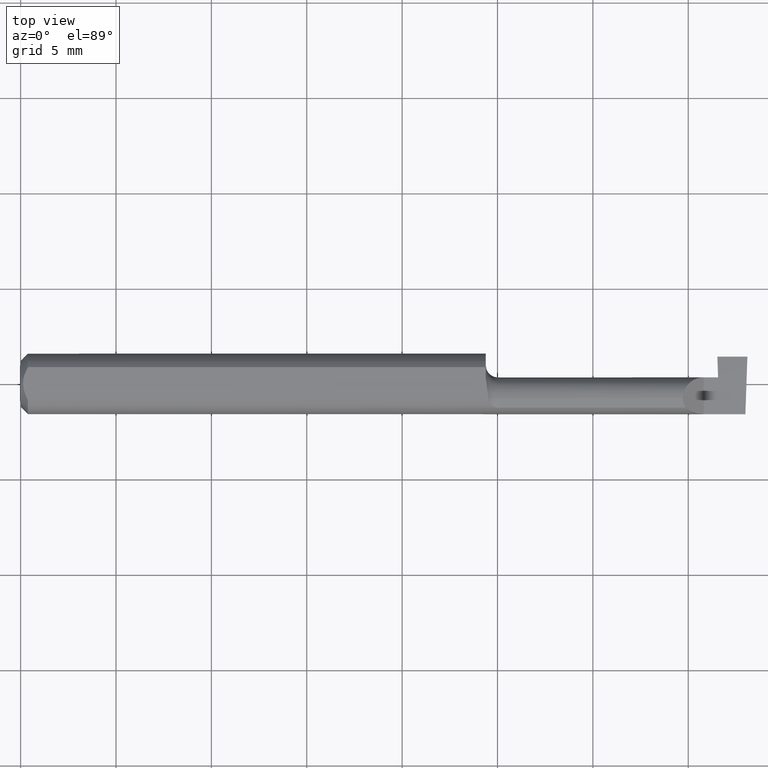
[diagram: clean part render]
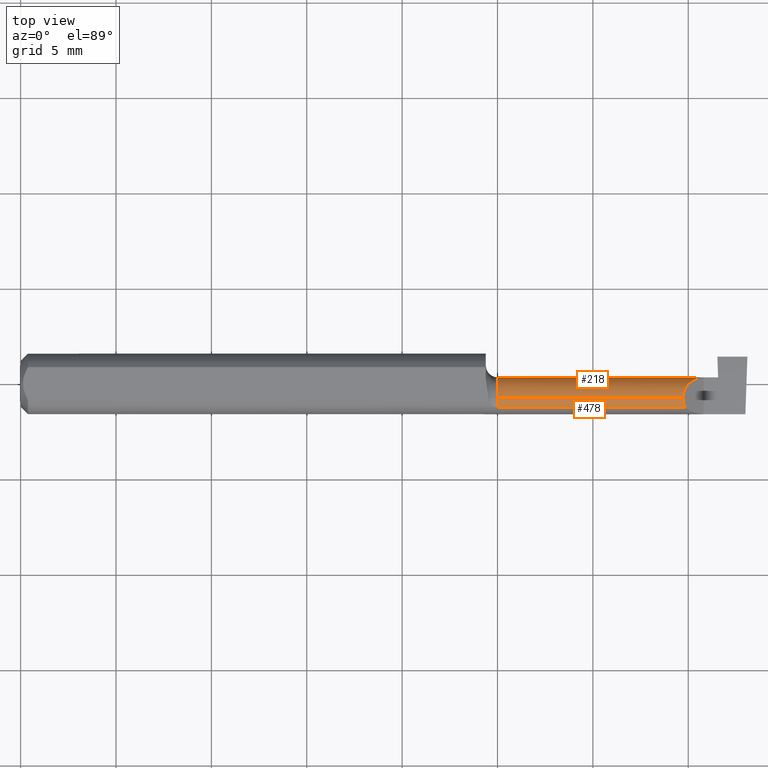
[diagram: same view with one multi-face feature highlighted, each face labeled with its STEP entity id]
A machine part, top view. The highlighted faces form ONE feature: a constant-radius fillet chain: 2 tangent blend faces with common blend radius 1.0922 mm. The faces share edges in the B-rep.
Their STEP definitions:
[1] entity #218 (Cylinder):
#8 = EDGE_LOOP ( 'NONE', ( #175, #228, #355, #48, #468, #635 ) ) ;
#20 = CARTESIAN_POINT ( 'NONE',  ( 0.9850000000000000977, -0.02949999999999999498, -0.04300000000000000350 ) ) ;
#27 = LINE ( 'NONE', #97, #556 ) ;
#48 = ORIENTED_EDGE ( 'NONE', *, *, #588, .F. ) ;
#54 = CYLINDRICAL_SURFACE ( 'NONE', #619, 0.04300000000000000350 ) ;
#74 = CARTESIAN_POINT ( 'NONE',  ( 1.367000000000000215, -0.02950000000000000192, 0.04300000000000000350 ) ) ;
#78 = VERTEX_POINT ( 'NONE', #592 ) ;
#93 = CARTESIAN_POINT ( 'NONE',  ( 1.384811183182043548, 0.01350000000000000332, 0.02518881681795692024 ) ) ;
#97 = CARTESIAN_POINT ( 'NONE',  ( 0.9600000000000001865, 0.01349999999999999811, 6.613092715395697606E-17 ) ) ;
#98 = DIRECTION ( 'NONE',  ( -1.000000000000000000, -0.000000000000000000, -0.000000000000000000 ) ) ;
#102 = CARTESIAN_POINT ( 'NONE',  ( 0.9600000000000001865, -0.02950000000000000192, 0.04300000000000000350 ) ) ;
#114 =( BOUNDED_CURVE ( )  B_SPLINE_CURVE ( 3, ( #542, #601, #93, #604 ),
 .UNSPECIFIED., .F., .T. ) 
 B_SPLINE_CURVE_WITH_KNOTS ( ( 4, 4 ),
 ( 0.000000000000000000, 1.570796326794896558 ),
 .UNSPECIFIED. ) 
 CURVE ( )  GEOMETRIC_REPRESENTATION_ITEM ( )  RATIONAL_B_SPLINE_CURVE ( ( 1.000000000000000000, 0.8047378541243649375, 0.8047378541243649375, 1.000000000000000000 ) ) 
 REPRESENTATION_ITEM ( '' )  );
#117 = CARTESIAN_POINT ( 'NONE',  ( 1.440999524473456361, -0.02950000000000000192, -0.04300000000000001044 ) ) ;
#137 = CARTESIAN_POINT ( 'NONE',  ( 0.9850000000000000977, -0.02950000000000000192, 0.04300000000000000350 ) ) ;
#175 = ORIENTED_EDGE ( 'NONE', *, *, #217, .F. ) ;
#183 = CARTESIAN_POINT ( 'NONE',  ( 1.440999524473456361, -0.02950000000000000192, -0.04300000000000001044 ) ) ;
#201 = DIRECTION ( 'NONE',  ( -1.000000000000000000, -0.000000000000000000, -0.000000000000000000 ) ) ;
#210 = LINE ( 'NONE', #102, #629 ) ;
#214 = DIRECTION ( 'NONE',  ( 0.000000000000000000, 0.000000000000000000, 1.000000000000000000 ) ) ;
#217 = EDGE_CURVE ( 'NONE', #295, #78, #543, .T. ) ;
#218 = ADVANCED_FACE ( 'NONE', ( #507 ), #54, .T. ) ;
#228 = ORIENTED_EDGE ( 'NONE', *, *, #501, .T. ) ;
#295 = VERTEX_POINT ( 'NONE', #183 ) ;
#330 = CARTESIAN_POINT ( 'NONE',  ( 1.439500677244090587, 0.01349999999999997383, 1.224154007838118068E-17 ) ) ;
#340 = CARTESIAN_POINT ( 'NONE',  ( 1.441000595818230590, -0.004311183182043083414, -0.04299999999999998962 ) ) ;
#355 = ORIENTED_EDGE ( 'NONE', *, *, #559, .F. ) ;
#359 = AXIS2_PLACEMENT_3D ( 'NONE', #487, #98, #644 ) ;
#381 = DIRECTION ( 'NONE',  ( 1.000000000000000000, 0.000000000000000000, 0.000000000000000000 ) ) ;
#398 = VERTEX_POINT ( 'NONE', #20 ) ;
#402 = EDGE_CURVE ( 'NONE', #571, #78, #27, .T. ) ;
#444 = CARTESIAN_POINT ( 'NONE',  ( 0.9600000000000001865, -0.02950000000000000192, 0.000000000000000000 ) ) ;
#468 = ORIENTED_EDGE ( 'NONE', *, *, #581, .T. ) ;
#473 = VERTEX_POINT ( 'NONE', #137 ) ;
#479 = LINE ( 'NONE', #698, #494 ) ;
#487 = CARTESIAN_POINT ( 'NONE',  ( 0.9850000000000000977, -0.02950000000000000192, 0.000000000000000000 ) ) ;
#494 = VECTOR ( 'NONE', #201, 39.37007874015748143 ) ;
#501 = EDGE_CURVE ( 'NONE', #295, #398, #479, .T. ) ;
#507 = FACE_OUTER_BOUND ( 'NONE', #8, .T. ) ;
#542 = CARTESIAN_POINT ( 'NONE',  ( 1.367000000000000215, -0.02950000000000000192, 0.04300000000000000350 ) ) ;
#543 =( BOUNDED_CURVE ( )  B_SPLINE_CURVE ( 3, ( #117, #340, #715, #330 ),
 .UNSPECIFIED., .F., .T. ) 
 B_SPLINE_CURVE_WITH_KNOTS ( ( 4, 4 ),
 ( 3.140373936913448016, 4.711170263708344130 ),
 .UNSPECIFIED. ) 
 CURVE ( )  GEOMETRIC_REPRESENTATION_ITEM ( )  RATIONAL_B_SPLINE_CURVE ( ( 1.000000000000000000, 0.8047378541243650485, 0.8047378541243650485, 1.000000000000000000 ) ) 
 REPRESENTATION_ITEM ( '' )  );
#556 = VECTOR ( 'NONE', #381, 39.37007874015748143 ) ;
#559 = EDGE_CURVE ( 'NONE', #473, #398, #576, .T. ) ;
#571 = VERTEX_POINT ( 'NONE', #647 ) ;
#576 = CIRCLE ( 'NONE', #359, 0.04300000000000000350 ) ;
#581 = EDGE_CURVE ( 'NONE', #645, #571, #114, .T. ) ;
#588 = EDGE_CURVE ( 'NONE', #645, #473, #210, .T. ) ;
#592 = CARTESIAN_POINT ( 'NONE',  ( 1.439500677244090587, 0.01349999999999997383, 1.224154007838118068E-17 ) ) ;
#601 = CARTESIAN_POINT ( 'NONE',  ( 1.367000000000000215, -0.004311183182043082547, 0.04300000000000000350 ) ) ;
#604 = CARTESIAN_POINT ( 'NONE',  ( 1.409999999999999920, 0.01349999999999997209, 1.102182119232617911E-17 ) ) ;
#619 = AXIS2_PLACEMENT_3D ( 'NONE', #444, #660, #214 ) ;
#629 = VECTOR ( 'NONE', #703, 39.37007874015748143 ) ;
#635 = ORIENTED_EDGE ( 'NONE', *, *, #402, .T. ) ;
#644 = DIRECTION ( 'NONE',  ( 0.000000000000000000, 0.000000000000000000, 1.000000000000000000 ) ) ;
#645 = VERTEX_POINT ( 'NONE', #74 ) ;
#647 = CARTESIAN_POINT ( 'NONE',  ( 1.409999999999999920, 0.01349999999999997209, 1.102182119232617911E-17 ) ) ;
#660 = DIRECTION ( 'NONE',  ( -1.000000000000000000, -0.000000000000000000, -0.000000000000000000 ) ) ;
#698 = CARTESIAN_POINT ( 'NONE',  ( 0.9600000000000001865, -0.02949999999999999845, -0.04300000000000000350 ) ) ;
#703 = DIRECTION ( 'NONE',  ( -1.000000000000000000, -0.000000000000000000, -0.000000000000000000 ) ) ;
#715 = CARTESIAN_POINT ( 'NONE',  ( 1.440379752967902327, 0.01349999999999999811, -0.02518881681795690983 ) ) ;
[2] entity #478 (Cylinder):
#3 = CIRCLE ( 'NONE', #15, 0.04300000000000000350 ) ;
#6 = DIRECTION ( 'NONE',  ( 1.000000000000000000, 0.000000000000000000, 0.000000000000000000 ) ) ;
#12 = CARTESIAN_POINT ( 'NONE',  ( 1.371996840119888761, -0.04961864406779655651, 0.03800315988011148532 ) ) ;
#15 = AXIS2_PLACEMENT_3D ( 'NONE', #339, #213, #607 ) ;
#53 = AXIS2_PLACEMENT_3D ( 'NONE', #537, #249, #314 ) ;
#74 = CARTESIAN_POINT ( 'NONE',  ( 1.367000000000000215, -0.02950000000000000192, 0.04300000000000000350 ) ) ;
#83 = VECTOR ( 'NONE', #6, 39.37007874015748143 ) ;
#92 = FACE_OUTER_BOUND ( 'NONE', #512, .T. ) ;
#102 = CARTESIAN_POINT ( 'NONE',  ( 0.9600000000000001865, -0.02950000000000000192, 0.04300000000000000350 ) ) ;
#131 = CARTESIAN_POINT ( 'NONE',  ( 1.371996840119888761, -0.04961864406779655651, 0.03800315988011148532 ) ) ;
#137 = CARTESIAN_POINT ( 'NONE',  ( 0.9850000000000000977, -0.02950000000000000192, 0.04300000000000000350 ) ) ;
#148 = CYLINDRICAL_SURFACE ( 'NONE', #53, 0.04300000000000000350 ) ;
#150 = ORIENTED_EDGE ( 'NONE', *, *, #701, .F. ) ;
#174 = EDGE_CURVE ( 'NONE', #516, #337, #270, .T. ) ;
#210 = LINE ( 'NONE', #102, #629 ) ;
#213 = DIRECTION ( 'NONE',  ( -1.000000000000000000, -0.000000000000000000, -0.000000000000000000 ) ) ;
#249 = DIRECTION ( 'NONE',  ( -1.000000000000000000, -0.000000000000000000, -0.000000000000000000 ) ) ;
#252 = CARTESIAN_POINT ( 'NONE',  ( 1.368699011535602361, -0.04338920303173529613, 0.04130098846439799604 ) ) ;
#270 = LINE ( 'NONE', #570, #83 ) ;
#292 = CARTESIAN_POINT ( 'NONE',  ( 0.9850000000000000977, -0.04961864406779661202, 0.03800315988011145063 ) ) ;
#309 = ORIENTED_EDGE ( 'NONE', *, *, #588, .T. ) ;
#314 = DIRECTION ( 'NONE',  ( 0.000000000000000000, 0.000000000000000000, 1.000000000000000000 ) ) ;
#319 = ORIENTED_EDGE ( 'NONE', *, *, #568, .T. ) ;
#334 = ORIENTED_EDGE ( 'NONE', *, *, #174, .T. ) ;
#337 = VERTEX_POINT ( 'NONE', #12 ) ;
#339 = CARTESIAN_POINT ( 'NONE',  ( 0.9850000000000000977, -0.02950000000000000192, 0.000000000000000000 ) ) ;
#415 =( BOUNDED_CURVE ( )  B_SPLINE_CURVE ( 3, ( #131, #252, #431, #526 ),
 .UNSPECIFIED., .F., .T. ) 
 B_SPLINE_CURVE_WITH_KNOTS ( ( 4, 4 ),
 ( 5.796299966638533974, 6.283185307179586232 ),
 .UNSPECIFIED. ) 
 CURVE ( )  GEOMETRIC_REPRESENTATION_ITEM ( )  RATIONAL_B_SPLINE_CURVE ( ( 1.000000000000000000, 0.9803425923803470443, 0.9803425923803470443, 1.000000000000000000 ) ) 
 REPRESENTATION_ITEM ( '' )  );
#431 = CARTESIAN_POINT ( 'NONE',  ( 1.367000000000000215, -0.03654851821258210676, 0.04300000000000000350 ) ) ;
#473 = VERTEX_POINT ( 'NONE', #137 ) ;
#478 = ADVANCED_FACE ( 'NONE', ( #92 ), #148, .T. ) ;
#512 = EDGE_LOOP ( 'NONE', ( #319, #309, #150, #334 ) ) ;
#516 = VERTEX_POINT ( 'NONE', #292 ) ;
#526 = CARTESIAN_POINT ( 'NONE',  ( 1.367000000000000215, -0.02950000000000000192, 0.04300000000000000350 ) ) ;
#537 = CARTESIAN_POINT ( 'NONE',  ( 0.9600000000000001865, -0.02950000000000000192, 0.000000000000000000 ) ) ;
#568 = EDGE_CURVE ( 'NONE', #337, #645, #415, .T. ) ;
#570 = CARTESIAN_POINT ( 'NONE',  ( 1.211500000000000243, -0.04961864406779661202, 0.03800315988011145063 ) ) ;
#588 = EDGE_CURVE ( 'NONE', #645, #473, #210, .T. ) ;
#607 = DIRECTION ( 'NONE',  ( 0.000000000000000000, 0.000000000000000000, 1.000000000000000000 ) ) ;
#629 = VECTOR ( 'NONE', #703, 39.37007874015748143 ) ;
#645 = VERTEX_POINT ( 'NONE', #74 ) ;
#701 = EDGE_CURVE ( 'NONE', #516, #473, #3, .T. ) ;
#703 = DIRECTION ( 'NONE',  ( -1.000000000000000000, -0.000000000000000000, -0.000000000000000000 ) ) ;